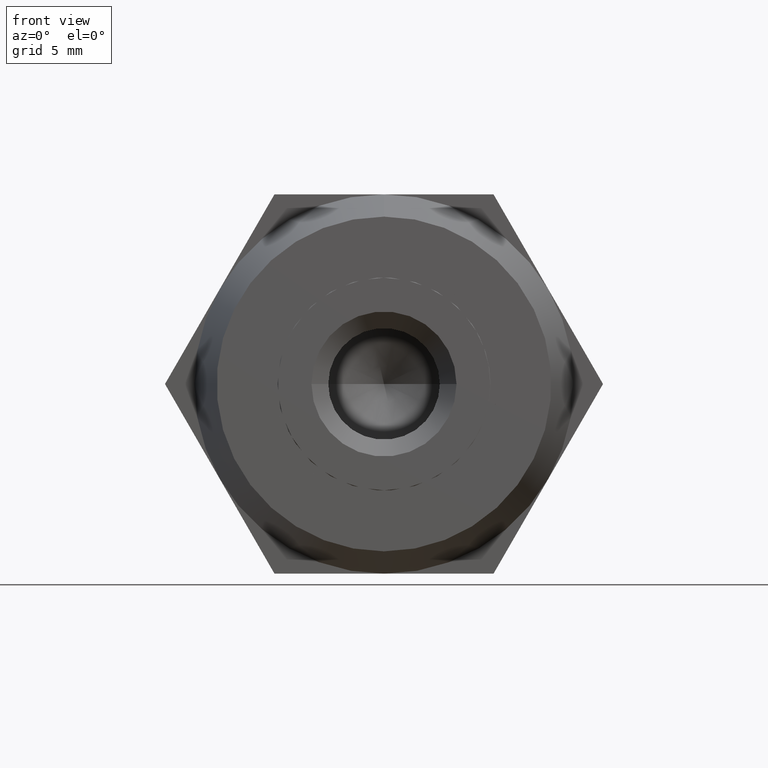
[diagram: clean part render]
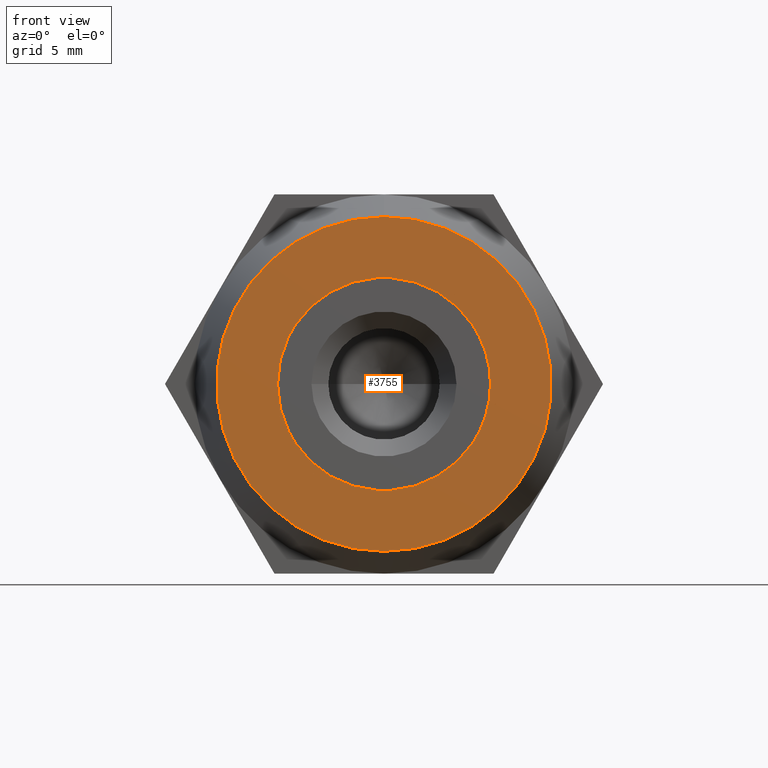
[diagram: same view with one face highlighted and labeled with its STEP entity id]
A machine part, front view. The second image highlights one B-rep face of the part: STEP entity #3755.
In plain terms, the highlighted planar face has unit normal (0, -1, 0).
Its self-contained STEP definition (entity closure, byte-faithful):
#62 = CARTESIAN_POINT ( 'NONE',  ( -5.999445985523400400, -10.00000000000000000, 0.8663452641916380400 ) ) ;
#68 = CARTESIAN_POINT ( 'NONE',  ( -4.278839962089940700, -10.00000000000000000, 2.113831788204209700 ) ) ;
#89 = CARTESIAN_POINT ( 'NONE',  ( 4.278839962089860700, -10.00000000000000000, 2.113831788204365100 ) ) ;
#178 = CARTESIAN_POINT ( 'NONE',  ( -1.734723475976804900E-015, -10.00000000000000000, -1.734723475976804900E-015 ) ) ;
#250 = AXIS2_PLACEMENT_3D ( 'NONE', #1373, #3688, #3405 ) ;
#256 = LINE ( 'NONE', #62, #1821 ) ;
#312 = VERTEX_POINT ( 'NONE', #1388 ) ;
#326 = ORIENTED_EDGE ( 'NONE', *, *, #1411, .T. ) ;
#332 = CIRCLE ( 'NONE', #250, 7.500000000000000000 ) ;
#394 = CARTESIAN_POINT ( 'NONE',  ( -0.3087879531335669900, -10.00000000000016000, -4.762500000000000200 ) ) ;
#407 = AXIS2_PLACEMENT_3D ( 'NONE', #1265, #3337, #1633 ) ;
#418 = DIRECTION ( 'NONE',  ( -1.776356839400250500E-015, 0.0000000000000000000, -1.000000000000000000 ) ) ;
#441 = DIRECTION ( 'NONE',  ( 0.0000000000000000000, 0.0000000000000000000, -1.000000000000000000 ) ) ;
#487 = LINE ( 'NONE', #3112, #1374 ) ;
#512 = ORIENTED_EDGE ( 'NONE', *, *, #3613, .T. ) ;
#538 = DIRECTION ( 'NONE',  ( -0.0000000000000000000, 1.000000000000000000, -0.0000000000000000000 ) ) ;
#557 = AXIS2_PLACEMENT_3D ( 'NONE', #2026, #538, #2065 ) ;
#558 = CARTESIAN_POINT ( 'NONE',  ( -1.734723475976804900E-015, -10.00000000000000000, -1.734723475976804900E-015 ) ) ;
#566 = DIRECTION ( 'NONE',  ( 0.0000000000000000000, 0.0000000000000000000, -1.000000000000000000 ) ) ;
#571 = AXIS2_PLACEMENT_3D ( 'NONE', #3346, #2464, #418 ) ;
#598 = VERTEX_POINT ( 'NONE', #3139 ) ;
#657 = EDGE_CURVE ( 'NONE', #598, #2912, #1506, .T. ) ;
#699 = CARTESIAN_POINT ( 'NONE',  ( 0.3087879531329260100, -10.00000000000000000, 4.762500000000000200 ) ) ;
#712 = VECTOR ( 'NONE', #2919, 1000.000000000000100 ) ;
#719 = CARTESIAN_POINT ( 'NONE',  ( -1.734723475976804900E-015, -10.00000000000000000, -1.734723475976804900E-015 ) ) ;
#825 = ORIENTED_EDGE ( 'NONE', *, *, #3497, .T. ) ;
#830 = ORIENTED_EDGE ( 'NONE', *, *, #1185, .T. ) ;
#854 = DIRECTION ( 'NONE',  ( 0.0000000000000000000, -1.000000000000000000, 0.0000000000000000000 ) ) ;
#859 = CIRCLE ( 'NONE', #2394, 4.772500000000000000 ) ;
#868 = CARTESIAN_POINT ( 'NONE',  ( -4.278839962090105000, -10.00000000000000000, -2.113831788203874900 ) ) ;
#880 = VERTEX_POINT ( 'NONE', #89 ) ;
#894 = CARTESIAN_POINT ( 'NONE',  ( -7.500000000000000000, -10.00000000000000000, 0.0000000000000000000 ) ) ;
#909 = ORIENTED_EDGE ( 'NONE', *, *, #1259, .T. ) ;
#994 = LINE ( 'NONE', #3207, #3241 ) ;
#1002 = CARTESIAN_POINT ( 'NONE',  ( 2.249445985523425200, -10.00000000000000000, -5.628845264191669500 ) ) ;
#1114 = VERTEX_POINT ( 'NONE', #3586 ) ;
#1185 = EDGE_CURVE ( 'NONE', #3577, #3818, #3146, .T. ) ;
#1216 = CARTESIAN_POINT ( 'NONE',  ( -7.500000000000000000, -10.00000000000000000, 4.762500000000000200 ) ) ;
#1229 = DIRECTION ( 'NONE',  ( 1.000000000000000000, 0.0000000000000000000, -1.261786539621752000E-015 ) ) ;
#1259 = EDGE_CURVE ( 'NONE', #1601, #1114, #3320, .T. ) ;
#1265 = CARTESIAN_POINT ( 'NONE',  ( 0.0000000000000000000, -10.00000000000000000, 0.0000000000000000000 ) ) ;
#1299 = VERTEX_POINT ( 'NONE', #68 ) ;
#1311 = DIRECTION ( 'NONE',  ( -0.5000000000000003300, 0.0000000000000000000, -0.8660254037844383700 ) ) ;
#1366 = CARTESIAN_POINT ( 'NONE',  ( 2.249445985523410100, -10.00000000000000000, 5.628845264191680200 ) ) ;
#1373 = CARTESIAN_POINT ( 'NONE',  ( 0.0000000000000000000, -10.00000000000000000, 0.0000000000000000000 ) ) ;
#1374 = VECTOR ( 'NONE', #1618, 1000.000000000000000 ) ;
#1388 = CARTESIAN_POINT ( 'NONE',  ( -0.3087879531329175100, -10.00000000000000000, 4.762500000000000200 ) ) ;
#1407 = DIRECTION ( 'NONE',  ( 0.4999999999999998900, 0.0000000000000000000, 0.8660254037844387100 ) ) ;
#1411 = EDGE_CURVE ( 'NONE', #1299, #2934, #994, .T. ) ;
#1437 = VERTEX_POINT ( 'NONE', #3302 ) ;
#1456 = CARTESIAN_POINT ( 'NONE',  ( 4.278839962089835000, -10.00000000000000000, -2.113831788204410000 ) ) ;
#1498 = LINE ( 'NONE', #1366, #712 ) ;
#1506 = CIRCLE ( 'NONE', #407, 7.500000000000000000 ) ;
#1567 = VERTEX_POINT ( 'NONE', #394 ) ;
#1591 = EDGE_CURVE ( 'NONE', #3200, #3820, #256, .T. ) ;
#1593 = DIRECTION ( 'NONE',  ( -0.0000000000000000000, 1.000000000000000000, -0.0000000000000000000 ) ) ;
#1601 = VERTEX_POINT ( 'NONE', #699 ) ;
#1612 = AXIS2_PLACEMENT_3D ( 'NONE', #894, #854, #566 ) ;
#1618 = DIRECTION ( 'NONE',  ( -1.000000000000000000, 0.0000000000000000000, 0.0000000000000000000 ) ) ;
#1633 = DIRECTION ( 'NONE',  ( 0.0000000000000000000, 0.0000000000000000000, 1.000000000000000000 ) ) ;
#1644 = EDGE_CURVE ( 'NONE', #2912, #598, #332, .T. ) ;
#1693 = PLANE ( 'NONE',  #1612 ) ;
#1696 = DIRECTION ( 'NONE',  ( -0.0000000000000000000, 1.000000000000000000, -0.0000000000000000000 ) ) ;
#1728 = CIRCLE ( 'NONE', #557, 4.772500000000000000 ) ;
#1765 = CARTESIAN_POINT ( 'NONE',  ( 0.3087879531335345200, -10.00000000000000000, -4.762500000000000200 ) ) ;
#1768 = EDGE_CURVE ( 'NONE', #3818, #1567, #487, .T. ) ;
#1821 = VECTOR ( 'NONE', #3632, 1000.000000000000000 ) ;
#1835 = ORIENTED_EDGE ( 'NONE', *, *, #1768, .T. ) ;
#1904 = ORIENTED_EDGE ( 'NONE', *, *, #657, .F. ) ;
#1912 = CARTESIAN_POINT ( 'NONE',  ( 0.0000000000000000000, -10.00000000000000000, 7.500000000000000000 ) ) ;
#1953 = AXIS2_PLACEMENT_3D ( 'NONE', #178, #1977, #3169 ) ;
#1977 = DIRECTION ( 'NONE',  ( -0.0000000000000000000, 1.000000000000000000, -0.0000000000000000000 ) ) ;
#2026 = CARTESIAN_POINT ( 'NONE',  ( -1.734723475976804900E-015, -10.00000000000000000, -1.734723475976804900E-015 ) ) ;
#2058 = CARTESIAN_POINT ( 'NONE',  ( -1.734723475976804900E-015, -10.00000000000000000, -1.734723475976804900E-015 ) ) ;
#2063 = EDGE_CURVE ( 'NONE', #312, #1601, #2253, .T. ) ;
#2065 = DIRECTION ( 'NONE',  ( 0.0000000000000000000, 0.0000000000000000000, -1.000000000000000000 ) ) ;
#2201 = CARTESIAN_POINT ( 'NONE',  ( 3.970052008957019900, -10.00000000000000000, -2.648668211795644800 ) ) ;
#2245 = CARTESIAN_POINT ( 'NONE',  ( -1.734723475976804900E-015, -10.00000000000000000, -1.734723475976804900E-015 ) ) ;
#2253 = LINE ( 'NONE', #1216, #3593 ) ;
#2280 = ORIENTED_EDGE ( 'NONE', *, *, #3538, .T. ) ;
#2290 = EDGE_CURVE ( 'NONE', #1114, #880, #1498, .T. ) ;
#2346 = DIRECTION ( 'NONE',  ( -5.329070518200751400E-015, 0.0000000000000000000, -1.000000000000000000 ) ) ;
#2348 = CARTESIAN_POINT ( 'NONE',  ( -3.970052008956699700, -10.00000000000000000, -2.648668211796129800 ) ) ;
#2367 = EDGE_CURVE ( 'NONE', #880, #1437, #859, .T. ) ;
#2385 = ORIENTED_EDGE ( 'NONE', *, *, #3849, .T. ) ;
#2394 = AXIS2_PLACEMENT_3D ( 'NONE', #558, #1696, #2346 ) ;
#2408 = ORIENTED_EDGE ( 'NONE', *, *, #1591, .T. ) ;
#2428 = VECTOR ( 'NONE', #1311, 1000.000000000000100 ) ;
#2464 = DIRECTION ( 'NONE',  ( -0.0000000000000000000, 1.000000000000000000, -0.0000000000000000000 ) ) ;
#2493 = CARTESIAN_POINT ( 'NONE',  ( -3.970052008956904500, -10.00000000000000000, 2.648668211795819800 ) ) ;
#2498 = EDGE_LOOP ( 'NONE', ( #3383, #1904 ) ) ;
#2520 = AXIS2_PLACEMENT_3D ( 'NONE', #2245, #3413, #2852 ) ;
#2650 = DIRECTION ( 'NONE',  ( 0.0000000000000000000, 0.0000000000000000000, -1.000000000000000000 ) ) ;
#2678 = DIRECTION ( 'NONE',  ( -0.0000000000000000000, 1.000000000000000000, -0.0000000000000000000 ) ) ;
#2712 = VERTEX_POINT ( 'NONE', #1456 ) ;
#2717 = AXIS2_PLACEMENT_3D ( 'NONE', #2058, #2678, #2650 ) ;
#2789 = ORIENTED_EDGE ( 'NONE', *, *, #2290, .T. ) ;
#2808 = CIRCLE ( 'NONE', #2854, 4.772500000000000000 ) ;
#2852 = DIRECTION ( 'NONE',  ( -8.881784197001252300E-016, 0.0000000000000000000, -1.000000000000000000 ) ) ;
#2854 = AXIS2_PLACEMENT_3D ( 'NONE', #719, #1593, #441 ) ;
#2912 = VERTEX_POINT ( 'NONE', #1912 ) ;
#2919 = DIRECTION ( 'NONE',  ( 0.5000000000000003300, 0.0000000000000000000, -0.8660254037844383700 ) ) ;
#2934 = VERTEX_POINT ( 'NONE', #2493 ) ;
#2979 = ORIENTED_EDGE ( 'NONE', *, *, #2367, .T. ) ;
#3030 = FACE_BOUND ( 'NONE', #3290, .T. ) ;
#3112 = CARTESIAN_POINT ( 'NONE',  ( -7.500000000000000000, -10.00000000000000000, -4.762500000000000200 ) ) ;
#3129 = CIRCLE ( 'NONE', #1953, 4.772500000000000000 ) ;
#3139 = CARTESIAN_POINT ( 'NONE',  ( 9.797174393178825700E-016, -10.00000000000000000, -7.500000000000000900 ) ) ;
#3146 = CIRCLE ( 'NONE', #2717, 4.772500000000000000 ) ;
#3169 = DIRECTION ( 'NONE',  ( -2.664535259100375700E-015, 0.0000000000000000000, -1.000000000000000000 ) ) ;
#3200 = VERTEX_POINT ( 'NONE', #2348 ) ;
#3207 = CARTESIAN_POINT ( 'NONE',  ( -5.999445985523420800, -10.00000000000000000, -0.8663452641916259400 ) ) ;
#3231 = CIRCLE ( 'NONE', #2520, 4.772500000000000000 ) ;
#3241 = VECTOR ( 'NONE', #1407, 1000.000000000000000 ) ;
#3290 = EDGE_LOOP ( 'NONE', ( #512, #830, #1835, #825, #2408, #2385, #326, #2280, #3614, #909, #2789, #2979, #3664 ) ) ;
#3302 = CARTESIAN_POINT ( 'NONE',  ( 4.772499999999998200, -10.00000000000000000, -1.734723475976804900E-015 ) ) ;
#3320 = CIRCLE ( 'NONE', #571, 4.772500000000000000 ) ;
#3337 = DIRECTION ( 'NONE',  ( 0.0000000000000000000, 1.000000000000000000, 0.0000000000000000000 ) ) ;
#3346 = CARTESIAN_POINT ( 'NONE',  ( -1.734723475976804900E-015, -10.00000000000000000, -1.734723475976804900E-015 ) ) ;
#3383 = ORIENTED_EDGE ( 'NONE', *, *, #1644, .F. ) ;
#3405 = DIRECTION ( 'NONE',  ( 0.0000000000000000000, 0.0000000000000000000, 1.000000000000000000 ) ) ;
#3407 = FACE_OUTER_BOUND ( 'NONE', #2498, .T. ) ;
#3413 = DIRECTION ( 'NONE',  ( -0.0000000000000000000, 1.000000000000000000, -0.0000000000000000000 ) ) ;
#3497 = EDGE_CURVE ( 'NONE', #1567, #3200, #2808, .T. ) ;
#3538 = EDGE_CURVE ( 'NONE', #2934, #312, #3231, .T. ) ;
#3577 = VERTEX_POINT ( 'NONE', #2201 ) ;
#3586 = CARTESIAN_POINT ( 'NONE',  ( 3.970052008956985300, -10.00000000000000000, 2.648668211795695000 ) ) ;
#3593 = VECTOR ( 'NONE', #1229, 1000.000000000000000 ) ;
#3613 = EDGE_CURVE ( 'NONE', #2712, #3577, #3784, .T. ) ;
#3614 = ORIENTED_EDGE ( 'NONE', *, *, #2063, .T. ) ;
#3632 = DIRECTION ( 'NONE',  ( -0.4999999999999998900, 0.0000000000000000000, 0.8660254037844387100 ) ) ;
#3664 = ORIENTED_EDGE ( 'NONE', *, *, #3691, .T. ) ;
#3688 = DIRECTION ( 'NONE',  ( 0.0000000000000000000, 1.000000000000000000, 0.0000000000000000000 ) ) ;
#3691 = EDGE_CURVE ( 'NONE', #1437, #2712, #3129, .T. ) ;
#3755 = ADVANCED_FACE ( 'NONE', ( #3407, #3030 ), #1693, .T. ) ;
#3784 = LINE ( 'NONE', #1002, #2428 ) ;
#3818 = VERTEX_POINT ( 'NONE', #1765 ) ;
#3820 = VERTEX_POINT ( 'NONE', #868 ) ;
#3849 = EDGE_CURVE ( 'NONE', #3820, #1299, #1728, .T. ) ;